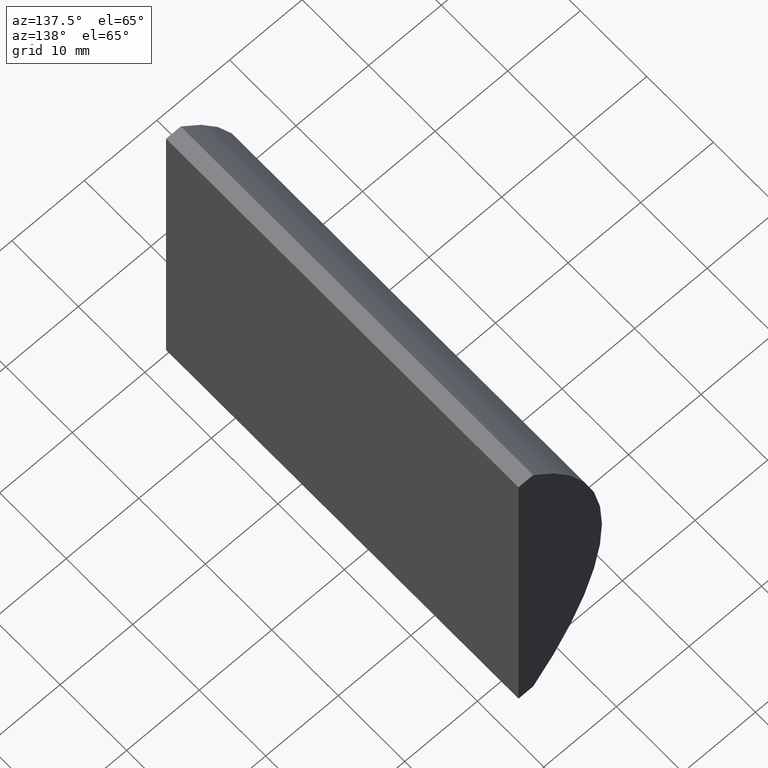
[diagram: clean part render]
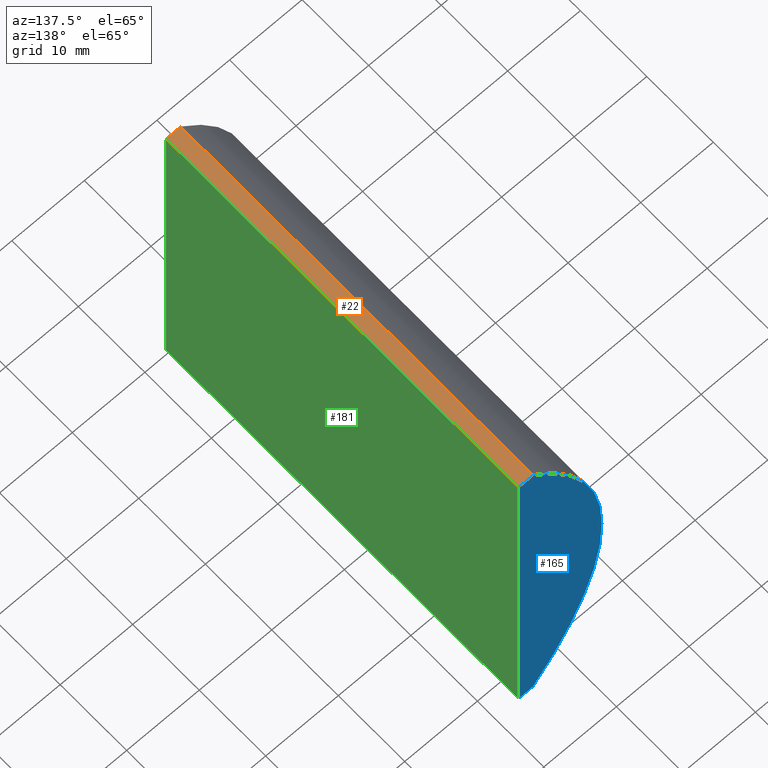
[diagram: same view with three faces highlighted in distinct colors, each labeled with its STEP entity id]
A machine part, auxiliary view with three faces highlighted in distinct colors.
Their STEP definitions:

[orange] entity #22 — the highlighted planar face has unit normal (0, 0, -1).
#4 = VERTEX_POINT ( 'NONE', #166 ) ;
#9 = VERTEX_POINT ( 'NONE', #32 ) ;
#12 = VERTEX_POINT ( 'NONE', #38 ) ;
#18 = ORIENTED_EDGE ( 'NONE', *, *, #74, .T. ) ;
#21 = ORIENTED_EDGE ( 'NONE', *, *, #64, .T. ) ;
#22 = ADVANCED_FACE ( 'NONE', ( #58 ), #141, .F. ) ;
#23 = EDGE_CURVE ( 'NONE', #12, #4, #70, .T. ) ;
#29 = CARTESIAN_POINT ( 'NONE',  ( -24.94886364213786900, 53.00000000000000000, 25.39999999999999900 ) ) ;
#30 = VECTOR ( 'NONE', #164, 1000.000000000000000 ) ;
#31 = VECTOR ( 'NONE', #183, 1000.000000000000000 ) ;
#32 = CARTESIAN_POINT ( 'NONE',  ( -24.94886364213786900, 53.00000000000000000, 25.39999999999999900 ) ) ;
#35 = EDGE_LOOP ( 'NONE', ( #18, #177, #201, #21 ) ) ;
#38 = CARTESIAN_POINT ( 'NONE',  ( -22.92479566514873200, 53.00000000000000000, 25.39999999999999900 ) ) ;
#47 = CARTESIAN_POINT ( 'NONE',  ( -24.94886364213786900, 53.00000000000000000, 25.39999999999999900 ) ) ;
#53 = CARTESIAN_POINT ( 'NONE',  ( -24.94886364213786900, 0.0000000000000000000, 25.39999999999999900 ) ) ;
#54 = LINE ( 'NONE', #185, #31 ) ;
#58 = FACE_OUTER_BOUND ( 'NONE', #35, .T. ) ;
#63 = VECTOR ( 'NONE', #115, 1000.000000000000000 ) ;
#64 = EDGE_CURVE ( 'NONE', #9, #174, #88, .T. ) ;
#70 = LINE ( 'NONE', #108, #63 ) ;
#73 = VECTOR ( 'NONE', #85, 1000.000000000000000 ) ;
#74 = EDGE_CURVE ( 'NONE', #174, #4, #54, .T. ) ;
#85 = DIRECTION ( 'NONE',  ( 1.000000000000000000, 0.0000000000000000000, 0.0000000000000000000 ) ) ;
#88 = LINE ( 'NONE', #29, #30 ) ;
#101 = DIRECTION ( 'NONE',  ( -1.000000000000000000, 0.0000000000000000000, -0.0000000000000000000 ) ) ;
#104 = EDGE_CURVE ( 'NONE', #9, #12, #105, .T. ) ;
#105 = LINE ( 'NONE', #47, #73 ) ;
#108 = CARTESIAN_POINT ( 'NONE',  ( -22.92479566514873200, 53.00000000000000000, 25.39999999999999900 ) ) ;
#115 = DIRECTION ( 'NONE',  ( -0.0000000000000000000, -1.000000000000000000, -0.0000000000000000000 ) ) ;
#116 = CARTESIAN_POINT ( 'NONE',  ( -24.94886364213786900, 53.00000000000000000, 25.39999999999999900 ) ) ;
#134 = AXIS2_PLACEMENT_3D ( 'NONE', #116, #163, #101 ) ;
#141 = PLANE ( 'NONE',  #134 ) ;
#163 = DIRECTION ( 'NONE',  ( 0.0000000000000000000, 0.0000000000000000000, -1.000000000000000000 ) ) ;
#164 = DIRECTION ( 'NONE',  ( -0.0000000000000000000, -1.000000000000000000, -0.0000000000000000000 ) ) ;
#166 = CARTESIAN_POINT ( 'NONE',  ( -22.92479566514873200, 0.0000000000000000000, 25.39999999999999900 ) ) ;
#174 = VERTEX_POINT ( 'NONE', #53 ) ;
#177 = ORIENTED_EDGE ( 'NONE', *, *, #23, .F. ) ;
#183 = DIRECTION ( 'NONE',  ( 1.000000000000000000, 0.0000000000000000000, 0.0000000000000000000 ) ) ;
#185 = CARTESIAN_POINT ( 'NONE',  ( -24.94886364213786900, 0.0000000000000000000, 25.39999999999999900 ) ) ;
#201 = ORIENTED_EDGE ( 'NONE', *, *, #104, .F. ) ;

[blue] entity #165 — the highlighted planar face has unit normal (0, 1, 0).
#1 = CARTESIAN_POINT ( 'NONE',  ( 4.355204334851265500, 53.00000000000000000, 4.286263797015675000E-017 ) ) ;
#5 = EDGE_CURVE ( 'NONE', #62, #157, #69, .T. ) ;
#9 = VERTEX_POINT ( 'NONE', #32 ) ;
#11 = CARTESIAN_POINT ( 'NONE',  ( -22.92479566514874600, 53.00000000000000000, -25.39999999999999900 ) ) ;
#12 = VERTEX_POINT ( 'NONE', #38 ) ;
#14 = CARTESIAN_POINT ( 'NONE',  ( 4.355204334851265500, 53.00000000000000000, 4.286263797015675000E-017 ) ) ;
#15 = CARTESIAN_POINT ( 'NONE',  ( -24.94886364213786900, 53.00000000000000000, -25.39999999999999900 ) ) ;
#19 = AXIS2_PLACEMENT_3D ( 'NONE', #14, #112, #187 ) ;
#20 = VECTOR ( 'NONE', #200, 1000.000000000000000 ) ;
#32 = CARTESIAN_POINT ( 'NONE',  ( -24.94886364213786900, 53.00000000000000000, 25.39999999999999900 ) ) ;
#36 = PLANE ( 'NONE',  #19 ) ;
#38 = CARTESIAN_POINT ( 'NONE',  ( -22.92479566514873200, 53.00000000000000000, 25.39999999999999900 ) ) ;
#47 = CARTESIAN_POINT ( 'NONE',  ( -24.94886364213786900, 53.00000000000000000, 25.39999999999999900 ) ) ;
#57 = EDGE_LOOP ( 'NONE', ( #59, #138, #147, #125 ) ) ;
#59 = ORIENTED_EDGE ( 'NONE', *, *, #106, .T. ) ;
#62 = VERTEX_POINT ( 'NONE', #80 ) ;
#69 = LINE ( 'NONE', #71, #20 ) ;
#71 = CARTESIAN_POINT ( 'NONE',  ( -24.94886364213786900, 53.00000000000000000, -25.39999999999999900 ) ) ;
#73 = VECTOR ( 'NONE', #85, 1000.000000000000000 ) ;
#80 = CARTESIAN_POINT ( 'NONE',  ( -22.92479566514874600, 53.00000000000000000, -25.39999999999999900 ) ) ;
#85 = DIRECTION ( 'NONE',  ( 1.000000000000000000, 0.0000000000000000000, 0.0000000000000000000 ) ) ;
#94 = DIRECTION ( 'NONE',  ( -2.731847993664263200E-016, -0.0000000000000000000, -1.000000000000000000 ) ) ;
#103 = CIRCLE ( 'NONE', #117, 38.78000000000000100 ) ;
#104 = EDGE_CURVE ( 'NONE', #9, #12, #105, .T. ) ;
#105 = LINE ( 'NONE', #47, #73 ) ;
#106 = EDGE_CURVE ( 'NONE', #157, #9, #103, .T. ) ;
#112 = DIRECTION ( 'NONE',  ( 0.0000000000000000000, 1.000000000000000000, 0.0000000000000000000 ) ) ;
#117 = AXIS2_PLACEMENT_3D ( 'NONE', #1, #161, #167 ) ;
#125 = ORIENTED_EDGE ( 'NONE', *, *, #5, .T. ) ;
#131 = VECTOR ( 'NONE', #94, 1000.000000000000000 ) ;
#136 = EDGE_CURVE ( 'NONE', #12, #62, #152, .T. ) ;
#138 = ORIENTED_EDGE ( 'NONE', *, *, #104, .T. ) ;
#145 = FACE_OUTER_BOUND ( 'NONE', #57, .T. ) ;
#147 = ORIENTED_EDGE ( 'NONE', *, *, #136, .T. ) ;
#152 = LINE ( 'NONE', #11, #131 ) ;
#157 = VERTEX_POINT ( 'NONE', #15 ) ;
#161 = DIRECTION ( 'NONE',  ( 0.0000000000000000000, 1.000000000000000000, 0.0000000000000000000 ) ) ;
#165 = ADVANCED_FACE ( 'NONE', ( #145 ), #36, .T. ) ;
#167 = DIRECTION ( 'NONE',  ( 0.0000000000000000000, 0.0000000000000000000, 1.000000000000000000 ) ) ;
#187 = DIRECTION ( 'NONE',  ( 0.0000000000000000000, -0.0000000000000000000, 1.000000000000000000 ) ) ;
#200 = DIRECTION ( 'NONE',  ( -1.000000000000000000, -0.0000000000000000000, -0.0000000000000000000 ) ) ;

[green] entity #181 — the highlighted planar face has unit normal (-1, 0, 0).
#3 = ORIENTED_EDGE ( 'NONE', *, *, #160, .T. ) ;
#4 = VERTEX_POINT ( 'NONE', #166 ) ;
#11 = CARTESIAN_POINT ( 'NONE',  ( -22.92479566514874600, 53.00000000000000000, -25.39999999999999900 ) ) ;
#12 = VERTEX_POINT ( 'NONE', #38 ) ;
#23 = EDGE_CURVE ( 'NONE', #12, #4, #70, .T. ) ;
#25 = VERTEX_POINT ( 'NONE', #133 ) ;
#26 = LINE ( 'NONE', #96, #186 ) ;
#38 = CARTESIAN_POINT ( 'NONE',  ( -22.92479566514873200, 53.00000000000000000, 25.39999999999999900 ) ) ;
#44 = DIRECTION ( 'NONE',  ( 2.731847993664263200E-016, 0.0000000000000000000, 1.000000000000000000 ) ) ;
#60 = EDGE_LOOP ( 'NONE', ( #3, #159, #61, #188 ) ) ;
#61 = ORIENTED_EDGE ( 'NONE', *, *, #136, .F. ) ;
#62 = VERTEX_POINT ( 'NONE', #80 ) ;
#63 = VECTOR ( 'NONE', #115, 1000.000000000000000 ) ;
#70 = LINE ( 'NONE', #108, #63 ) ;
#80 = CARTESIAN_POINT ( 'NONE',  ( -22.92479566514874600, 53.00000000000000000, -25.39999999999999900 ) ) ;
#86 = PLANE ( 'NONE',  #204 ) ;
#89 = VECTOR ( 'NONE', #140, 1000.000000000000000 ) ;
#94 = DIRECTION ( 'NONE',  ( -2.731847993664263200E-016, -0.0000000000000000000, -1.000000000000000000 ) ) ;
#96 = CARTESIAN_POINT ( 'NONE',  ( -22.92479566514874600, 0.0000000000000000000, -25.39999999999999900 ) ) ;
#108 = CARTESIAN_POINT ( 'NONE',  ( -22.92479566514873200, 53.00000000000000000, 25.39999999999999900 ) ) ;
#111 = CARTESIAN_POINT ( 'NONE',  ( -22.92479566514874600, 53.00000000000000000, -25.39999999999999900 ) ) ;
#115 = DIRECTION ( 'NONE',  ( -0.0000000000000000000, -1.000000000000000000, -0.0000000000000000000 ) ) ;
#119 = LINE ( 'NONE', #111, #89 ) ;
#120 = EDGE_CURVE ( 'NONE', #62, #25, #119, .T. ) ;
#131 = VECTOR ( 'NONE', #94, 1000.000000000000000 ) ;
#133 = CARTESIAN_POINT ( 'NONE',  ( -22.92479566514874600, 0.0000000000000000000, -25.39999999999999900 ) ) ;
#136 = EDGE_CURVE ( 'NONE', #12, #62, #152, .T. ) ;
#140 = DIRECTION ( 'NONE',  ( -0.0000000000000000000, -1.000000000000000000, -0.0000000000000000000 ) ) ;
#146 = DIRECTION ( 'NONE',  ( -2.731847993664263200E-016, -0.0000000000000000000, -1.000000000000000000 ) ) ;
#150 = FACE_OUTER_BOUND ( 'NONE', #60, .T. ) ;
#152 = LINE ( 'NONE', #11, #131 ) ;
#159 = ORIENTED_EDGE ( 'NONE', *, *, #120, .F. ) ;
#160 = EDGE_CURVE ( 'NONE', #4, #25, #26, .T. ) ;
#166 = CARTESIAN_POINT ( 'NONE',  ( -22.92479566514873200, 0.0000000000000000000, 25.39999999999999900 ) ) ;
#169 = CARTESIAN_POINT ( 'NONE',  ( -22.92479566514874600, 53.00000000000000000, -25.39999999999999900 ) ) ;
#180 = DIRECTION ( 'NONE',  ( -1.000000000000000000, 0.0000000000000000000, 2.731847993664263200E-016 ) ) ;
#181 = ADVANCED_FACE ( 'NONE', ( #150 ), #86, .F. ) ;
#186 = VECTOR ( 'NONE', #146, 1000.000000000000000 ) ;
#188 = ORIENTED_EDGE ( 'NONE', *, *, #23, .T. ) ;
#204 = AXIS2_PLACEMENT_3D ( 'NONE', #169, #180, #44 ) ;